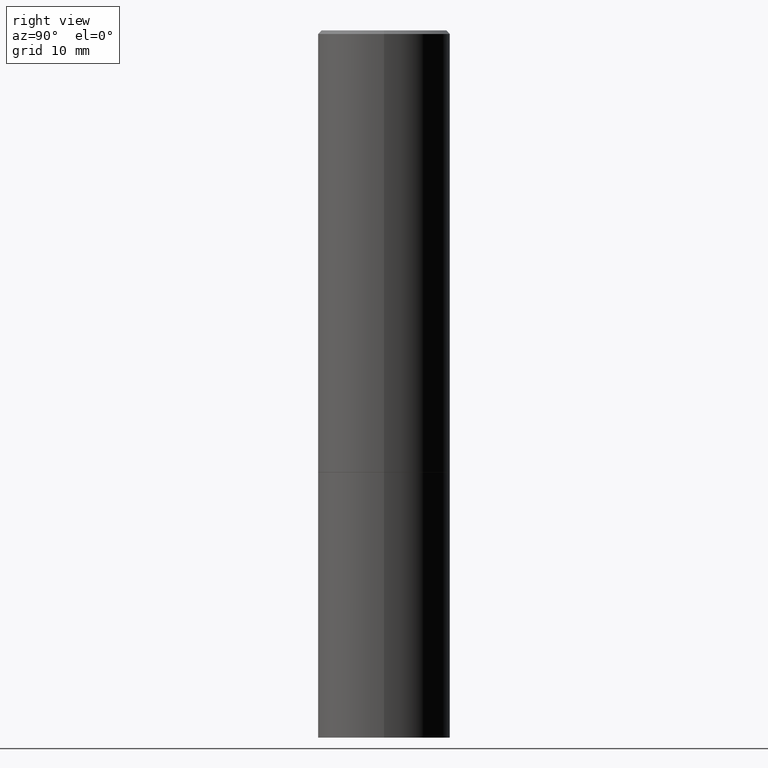
[diagram: clean part render]
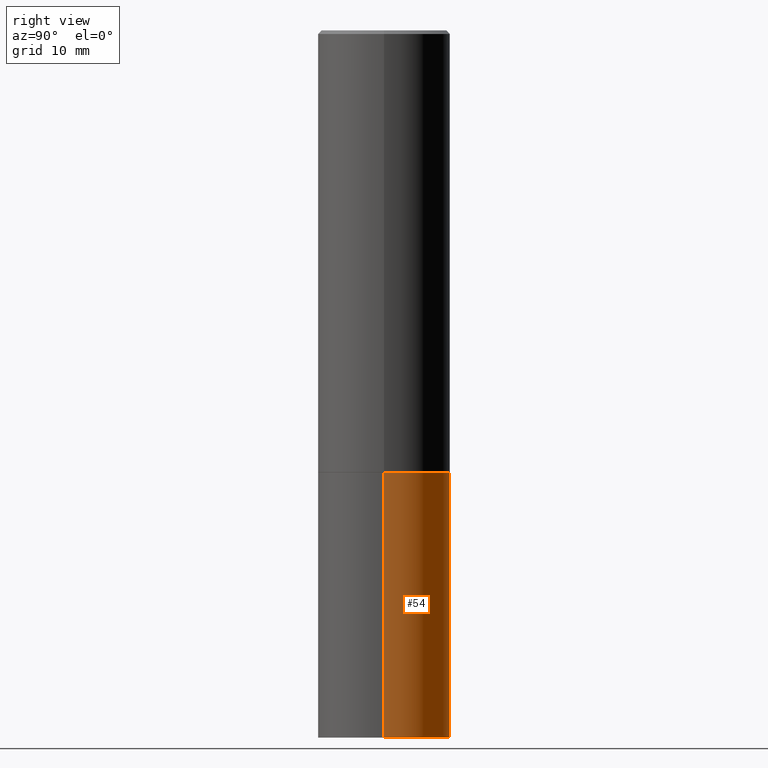
[diagram: same view with one face highlighted and labeled with its STEP entity id]
A machine part, right view. The second image highlights one B-rep face of the part: STEP entity #54.
In plain terms, the highlighted cylindrical surface (partial cylindrical patch) has radius 9.525 mm, axis along (-0, 0, 1).
Its self-contained STEP definition (entity closure, byte-faithful):
#7 = DIRECTION ( 'NONE',  ( -2.445468806185136877E-29, 3.491481338843145188E-15, 1.000000000000000000 ) ) ;
#14 = VERTEX_POINT ( 'NONE', #286 ) ;
#19 = ORIENTED_EDGE ( 'NONE', *, *, #231, .F. ) ;
#25 = CARTESIAN_POINT ( 'NONE',  ( 0.000000000000000000, 0.000000000000000000, 0.000000000000000000 ) ) ;
#30 = FACE_OUTER_BOUND ( 'NONE', #156, .T. ) ;
#33 = CARTESIAN_POINT ( 'NONE',  ( 0.3750000000000000555, -2.618611004132350016E-15, 1.828566290923476203E-29 ) ) ;
#40 = AXIS2_PLACEMENT_3D ( 'NONE', #76, #240, #132 ) ;
#45 = ORIENTED_EDGE ( 'NONE', *, *, #245, .F. ) ;
#49 = VERTEX_POINT ( 'NONE', #190 ) ;
#53 = CYLINDRICAL_SURFACE ( 'NONE', #89, 0.3750000000000000555 ) ;
#54 = ADVANCED_FACE ( 'NONE', ( #30 ), #53, .T. ) ;
#66 = CARTESIAN_POINT ( 'NONE',  ( -0.3750000000000000555, 2.664535259100376091E-15, -1.844600658845589598E-29 ) ) ;
#76 = CARTESIAN_POINT ( 'NONE',  ( 9.781875224740546387E-29, -1.396592535537258233E-14, -4.000000000000000000 ) ) ;
#89 = AXIS2_PLACEMENT_3D ( 'NONE', #25, #341, #223 ) ;
#116 = DIRECTION ( 'NONE',  ( -2.445468806185136877E-29, 3.491481338843145188E-15, 1.000000000000000000 ) ) ;
#122 = DIRECTION ( 'NONE',  ( 1.000000000000000000, -6.982962677686264344E-15, 0.000000000000000000 ) ) ;
#132 = DIRECTION ( 'NONE',  ( 1.000000000000000000, -6.982962677686266711E-15, 0.000000000000000000 ) ) ;
#148 = DIRECTION ( 'NONE',  ( -2.445468806185136597E-29, 3.491481338843145583E-15, 1.000000000000000000 ) ) ;
#156 = EDGE_LOOP ( 'NONE', ( #280, #296, #19, #45 ) ) ;
#166 = VECTOR ( 'NONE', #7, 39.37007874015748143 ) ;
#169 = LINE ( 'NONE', #33, #166 ) ;
#177 = EDGE_CURVE ( 'NONE', #49, #14, #365, .T. ) ;
#178 = VERTEX_POINT ( 'NONE', #230 ) ;
#187 = CARTESIAN_POINT ( 'NONE',  ( 0.3750000000000000555, -1.658453635950493392E-14, -4.000000000000000000 ) ) ;
#190 = CARTESIAN_POINT ( 'NONE',  ( -0.3750000000000000555, -8.682779092139847151E-15, -4.000000000000000000 ) ) ;
#223 = DIRECTION ( 'NONE',  ( 1.000000000000000000, -6.982962677686265922E-15, 4.876176775795935793E-29 ) ) ;
#230 = CARTESIAN_POINT ( 'NONE',  ( 0.3750000000000000555, -1.134731435124021338E-14, -2.500000000000000000 ) ) ;
#231 = EDGE_CURVE ( 'NONE', #178, #14, #314, .T. ) ;
#240 = DIRECTION ( 'NONE',  ( -2.445468806185136597E-29, 3.491481338843145583E-15, 1.000000000000000000 ) ) ;
#245 = EDGE_CURVE ( 'NONE', #304, #178, #169, .T. ) ;
#257 = VECTOR ( 'NONE', #116, 39.37007874015748143 ) ;
#278 = EDGE_CURVE ( 'NONE', #304, #49, #322, .T. ) ;
#280 = ORIENTED_EDGE ( 'NONE', *, *, #278, .T. ) ;
#286 = CARTESIAN_POINT ( 'NONE',  ( -0.3750000000000000555, -8.682779092139847151E-15, -2.500000000000000000 ) ) ;
#289 = CARTESIAN_POINT ( 'NONE',  ( 6.113672015462842613E-29, -8.728703347107864943E-15, -2.500000000000000000 ) ) ;
#296 = ORIENTED_EDGE ( 'NONE', *, *, #177, .T. ) ;
#300 = AXIS2_PLACEMENT_3D ( 'NONE', #289, #148, #122 ) ;
#304 = VERTEX_POINT ( 'NONE', #187 ) ;
#314 = CIRCLE ( 'NONE', #300, 0.3750000000000000555 ) ;
#322 = CIRCLE ( 'NONE', #40, 0.3750000000000000555 ) ;
#341 = DIRECTION ( 'NONE',  ( -2.445468806185136597E-29, 3.491481338843145583E-15, 1.000000000000000000 ) ) ;
#365 = LINE ( 'NONE', #66, #257 ) ;